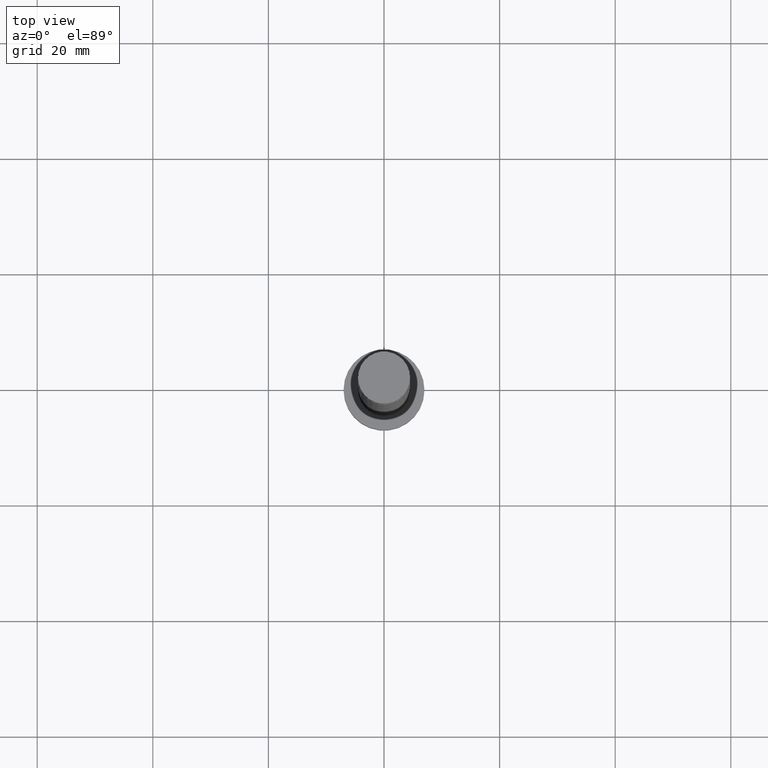
[diagram: clean part render]
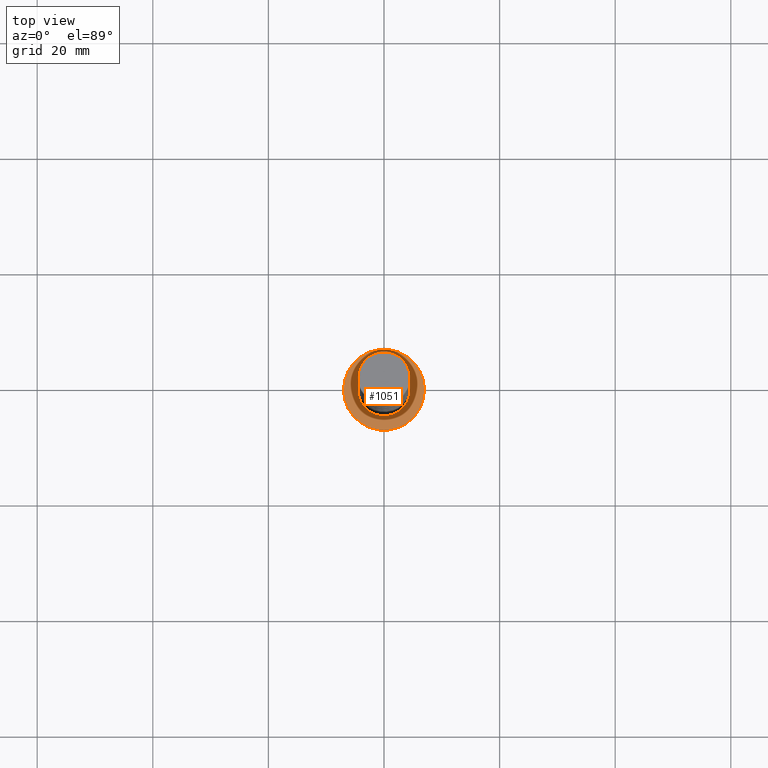
[diagram: same view with one face highlighted and labeled with its STEP entity id]
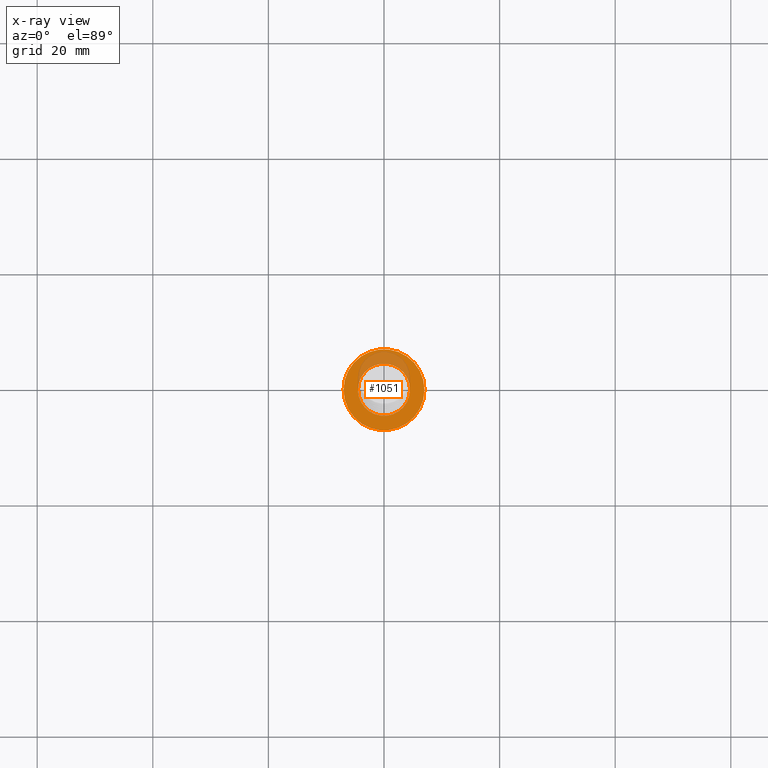
[diagram: x-ray of the same camera — body ghosted, the highlighted face saturated]
A machine part, top view. The second image highlights one B-rep face of the part: STEP entity #1051.
The next image is the same camera in x-ray: the body ghosted, the highlighted face saturated — about 21% of this face is hidden behind the body in this view.
In plain terms, the highlighted planar face has unit normal (0, 0, 1).
Its self-contained STEP definition (entity closure, byte-faithful):
#58 = CARTESIAN_POINT ( 'NONE',  ( 0.000000000000000000, 0.000000000000000000, 5.000000000000000000 ) ) ;
#66 = DIRECTION ( 'NONE',  ( 1.000000000000000000, 0.000000000000000000, -0.000000000000000000 ) ) ;
#124 = AXIS2_PLACEMENT_3D ( 'NONE', #58, #553, #66 ) ;
#151 = AXIS2_PLACEMENT_3D ( 'NONE', #795, #1118, #675 ) ;
#197 = ORIENTED_EDGE ( 'NONE', *, *, #547, .T. ) ;
#228 = CARTESIAN_POINT ( 'NONE',  ( -4.500000000000000000, 0.000000000000000000, 5.000000000000000000 ) ) ;
#324 = AXIS2_PLACEMENT_3D ( 'NONE', #1557, #477, #1325 ) ;
#347 = DIRECTION ( 'NONE',  ( 0.000000000000000000, 0.000000000000000000, 1.000000000000000000 ) ) ;
#359 = EDGE_CURVE ( 'NONE', #570, #1182, #1171, .T. ) ;
#444 = CARTESIAN_POINT ( 'NONE',  ( 0.000000000000000000, 0.000000000000000000, 5.000000000000000000 ) ) ;
#448 = ORIENTED_EDGE ( 'NONE', *, *, #359, .T. ) ;
#477 = DIRECTION ( 'NONE',  ( 0.000000000000000000, 0.000000000000000000, 1.000000000000000000 ) ) ;
#547 = EDGE_CURVE ( 'NONE', #1182, #570, #1493, .T. ) ;
#553 = DIRECTION ( 'NONE',  ( 0.000000000000000000, 0.000000000000000000, 1.000000000000000000 ) ) ;
#570 = VERTEX_POINT ( 'NONE', #1573 ) ;
#576 = VERTEX_POINT ( 'NONE', #953 ) ;
#591 = CIRCLE ( 'NONE', #151, 4.500000000000000000 ) ;
#630 = EDGE_CURVE ( 'NONE', #576, #916, #1415, .T. ) ;
#639 = CARTESIAN_POINT ( 'NONE',  ( 7.000000000000000000, 8.572527594031473190E-16, 5.000000000000000000 ) ) ;
#675 = DIRECTION ( 'NONE',  ( 1.000000000000000000, 0.000000000000000000, 0.000000000000000000 ) ) ;
#681 = DIRECTION ( 'NONE',  ( 1.000000000000000000, 0.000000000000000000, 0.000000000000000000 ) ) ;
#795 = CARTESIAN_POINT ( 'NONE',  ( 0.000000000000000000, 0.000000000000000000, 5.000000000000000000 ) ) ;
#916 = VERTEX_POINT ( 'NONE', #228 ) ;
#938 = DIRECTION ( 'NONE',  ( 1.000000000000000000, 0.000000000000000000, 0.000000000000000000 ) ) ;
#939 = AXIS2_PLACEMENT_3D ( 'NONE', #1437, #347, #938 ) ;
#953 = CARTESIAN_POINT ( 'NONE',  ( 4.500000000000000000, 5.510910596163088569E-16, 5.000000000000000000 ) ) ;
#960 = AXIS2_PLACEMENT_3D ( 'NONE', #444, #1158, #681 ) ;
#967 = FACE_OUTER_BOUND ( 'NONE', #1283, .T. ) ;
#1051 = ADVANCED_FACE ( 'NONE', ( #1214, #967 ), #1066, .T. ) ;
#1066 = PLANE ( 'NONE',  #124 ) ;
#1118 = DIRECTION ( 'NONE',  ( 0.000000000000000000, 0.000000000000000000, 1.000000000000000000 ) ) ;
#1158 = DIRECTION ( 'NONE',  ( 0.000000000000000000, 0.000000000000000000, 1.000000000000000000 ) ) ;
#1171 = CIRCLE ( 'NONE', #960, 7.000000000000000000 ) ;
#1182 = VERTEX_POINT ( 'NONE', #639 ) ;
#1196 = ORIENTED_EDGE ( 'NONE', *, *, #630, .F. ) ;
#1214 = FACE_BOUND ( 'NONE', #1298, .T. ) ;
#1224 = EDGE_CURVE ( 'NONE', #916, #576, #591, .T. ) ;
#1248 = ORIENTED_EDGE ( 'NONE', *, *, #1224, .F. ) ;
#1283 = EDGE_LOOP ( 'NONE', ( #448, #197 ) ) ;
#1298 = EDGE_LOOP ( 'NONE', ( #1248, #1196 ) ) ;
#1325 = DIRECTION ( 'NONE',  ( 1.000000000000000000, 0.000000000000000000, 0.000000000000000000 ) ) ;
#1415 = CIRCLE ( 'NONE', #939, 4.500000000000000000 ) ;
#1437 = CARTESIAN_POINT ( 'NONE',  ( 0.000000000000000000, 0.000000000000000000, 5.000000000000000000 ) ) ;
#1493 = CIRCLE ( 'NONE', #324, 7.000000000000000000 ) ;
#1557 = CARTESIAN_POINT ( 'NONE',  ( 0.000000000000000000, 0.000000000000000000, 5.000000000000000000 ) ) ;
#1573 = CARTESIAN_POINT ( 'NONE',  ( -7.000000000000000000, 0.000000000000000000, 5.000000000000000000 ) ) ;